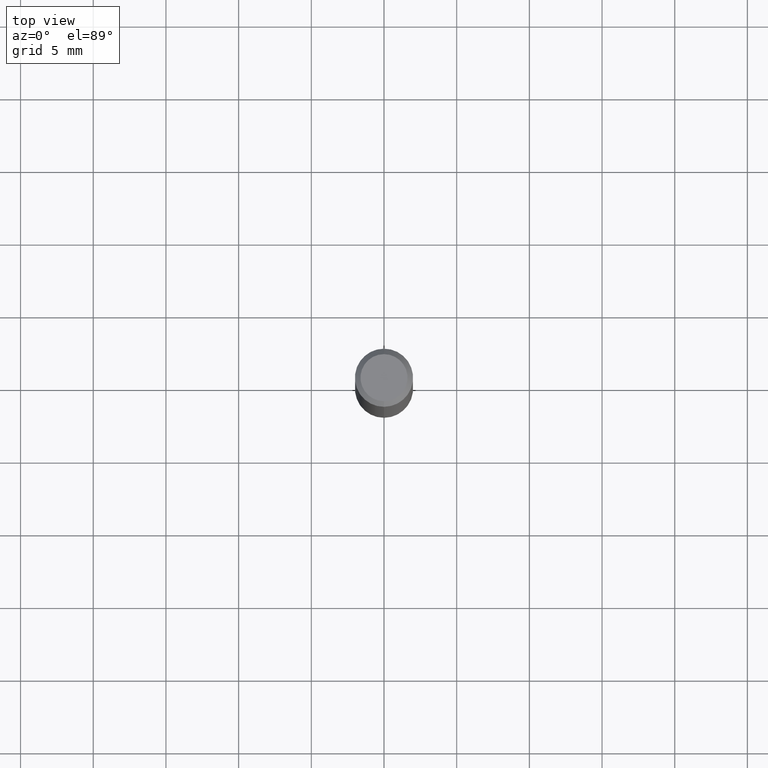
[diagram: clean part render]
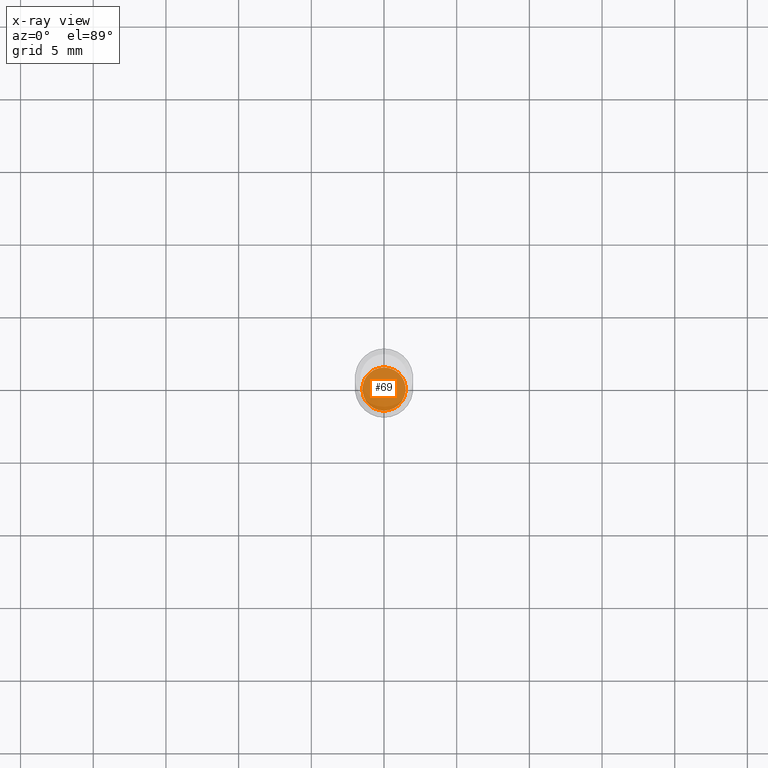
[diagram: x-ray — body ghosted, one internal face saturated and labeled with its STEP entity id]
A machine part, top view, then the same camera in x-ray: the body is ghosted and one INTERNAL B-rep face — a face not visible from any outside direction — is saturated and labeled: STEP entity #69.
In plain terms, the highlighted planar face has unit normal (-0, 0, 1).
Its self-contained STEP definition (entity closure, byte-faithful):
#11 = PLANE ( 'NONE',  #382 ) ;
#30 = CARTESIAN_POINT ( 'NONE',  ( -4.088524647784870959E-16, -0.05855000000000625676, -1.791299999999999892 ) ) ;
#35 = DIRECTION ( 'NONE',  ( -2.445166276302785085E-29, 3.491914578853604397E-15, 1.000000000000000000 ) ) ;
#43 = AXIS2_PLACEMENT_3D ( 'NONE', #469, #35, #112 ) ;
#68 = FACE_OUTER_BOUND ( 'NONE', #300, .T. ) ;
#69 = ADVANCED_FACE ( 'NONE', ( #68 ), #11, .F. ) ;
#89 = DIRECTION ( 'NONE',  ( -2.445166276302784805E-29, 3.491914578853604397E-15, 1.000000000000000000 ) ) ;
#112 = DIRECTION ( 'NONE',  ( -6.982962677686265922E-15, -1.000000000000000000, 4.665837734695582242E-15 ) ) ;
#173 = CARTESIAN_POINT ( 'NONE',  ( 4.380026350741179351E-29, -6.255066585100460566E-15, -1.791300000000000114 ) ) ;
#178 = CIRCLE ( 'NONE', #251, 0.05854999999999999788 ) ;
#198 = CIRCLE ( 'NONE', #43, 0.05854999999999999788 ) ;
#222 = DIRECTION ( 'NONE',  ( -2.445166276302785085E-29, 3.491914578853604397E-15, 1.000000000000000000 ) ) ;
#241 = VERTEX_POINT ( 'NONE', #308 ) ;
#242 = DIRECTION ( 'NONE',  ( -6.982962677686265922E-15, -1.000000000000000000, 3.491914578853604397E-15 ) ) ;
#251 = AXIS2_PLACEMENT_3D ( 'NONE', #340, #222, #309 ) ;
#252 = EDGE_CURVE ( 'NONE', #434, #241, #198, .T. ) ;
#300 = EDGE_LOOP ( 'NONE', ( #477, #314 ) ) ;
#308 = CARTESIAN_POINT ( 'NONE',  ( 4.177991286269823325E-16, 0.05854999999999373900, -1.791300000000000336 ) ) ;
#309 = DIRECTION ( 'NONE',  ( -6.982962677686265922E-15, -1.000000000000000000, 4.665837734695582242E-15 ) ) ;
#314 = ORIENTED_EDGE ( 'NONE', *, *, #373, .F. ) ;
#340 = CARTESIAN_POINT ( 'NONE',  ( 4.380026350741179351E-29, -6.255066585100460566E-15, -1.791300000000000114 ) ) ;
#373 = EDGE_CURVE ( 'NONE', #241, #434, #178, .T. ) ;
#382 = AXIS2_PLACEMENT_3D ( 'NONE', #173, #89, #242 ) ;
#434 = VERTEX_POINT ( 'NONE', #30 ) ;
#469 = CARTESIAN_POINT ( 'NONE',  ( 4.380026350741179351E-29, -6.255066585100460566E-15, -1.791300000000000114 ) ) ;
#477 = ORIENTED_EDGE ( 'NONE', *, *, #252, .F. ) ;